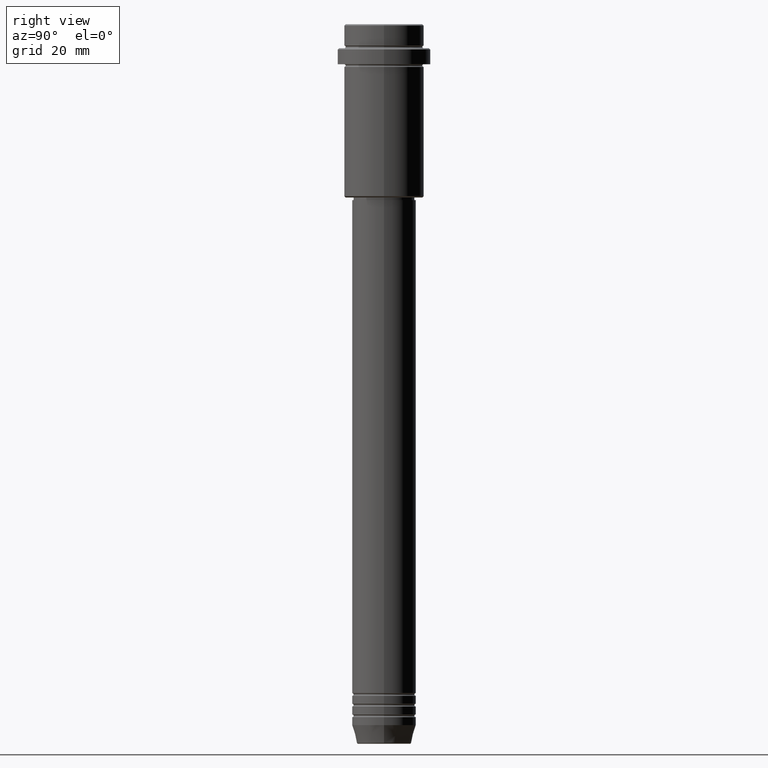
[diagram: clean part render]
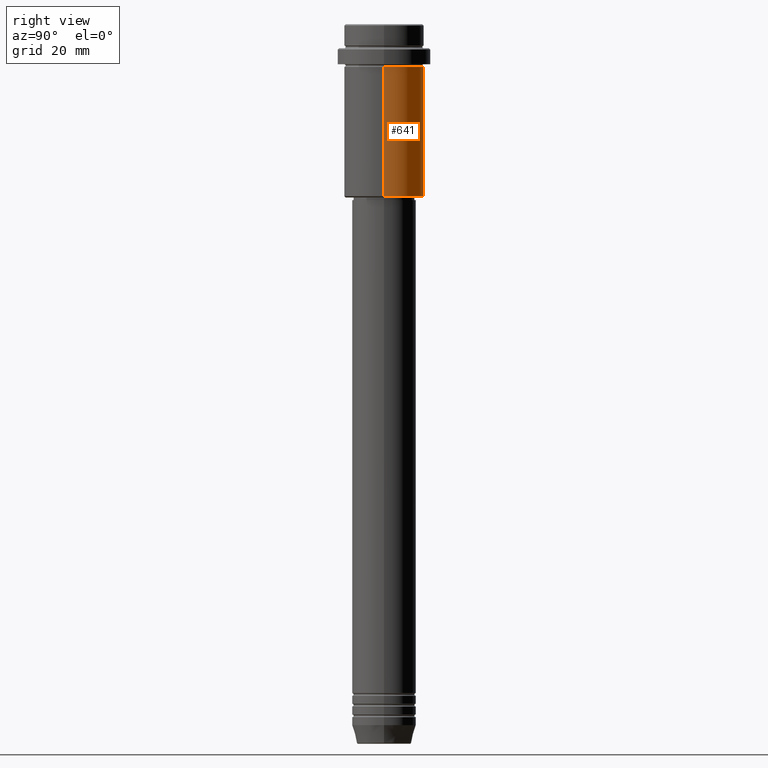
[diagram: same view with one face highlighted and labeled with its STEP entity id]
A machine part, right view. The second image highlights one B-rep face of the part: STEP entity #641.
In plain terms, the highlighted cylindrical surface (partial cylindrical patch) has radius 15 mm, axis along (-0, -0, 1).
Its self-contained STEP definition (entity closure, byte-faithful):
#46 = AXIS2_PLACEMENT_3D ( 'NONE', #520, #1402, #429 ) ;
#92 = EDGE_CURVE ( 'NONE', #262, #382, #1300, .T. ) ;
#118 = DIRECTION ( 'NONE',  ( 1.000000000000000000, 0.000000000000000000, 0.000000000000000000 ) ) ;
#164 = VECTOR ( 'NONE', #179, 1000.000000000000000 ) ;
#179 = DIRECTION ( 'NONE',  ( -0.000000000000000000, -0.000000000000000000, 1.000000000000000000 ) ) ;
#262 = VERTEX_POINT ( 'NONE', #590 ) ;
#264 = ORIENTED_EDGE ( 'NONE', *, *, #92, .F. ) ;
#283 = ORIENTED_EDGE ( 'NONE', *, *, #1070, .T. ) ;
#286 = DIRECTION ( 'NONE',  ( -0.000000000000000000, -0.000000000000000000, 1.000000000000000000 ) ) ;
#299 = LINE ( 'NONE', #731, #164 ) ;
#313 = CYLINDRICAL_SURFACE ( 'NONE', #1262, 15.00000000000000000 ) ;
#382 = VERTEX_POINT ( 'NONE', #602 ) ;
#417 = CARTESIAN_POINT ( 'NONE',  ( -15.00000000000000000, 1.836970198721029589E-15, -64.49999999999998579 ) ) ;
#428 = EDGE_CURVE ( 'NONE', #1211, #262, #299, .T. ) ;
#429 = DIRECTION ( 'NONE',  ( -1.000000000000000000, 0.000000000000000000, 0.000000000000000000 ) ) ;
#430 = DIRECTION ( 'NONE',  ( 1.000000000000000000, 0.000000000000000000, 0.000000000000000000 ) ) ;
#433 = CARTESIAN_POINT ( 'NONE',  ( 0.000000000000000000, 0.000000000000000000, 0.000000000000000000 ) ) ;
#474 = ORIENTED_EDGE ( 'NONE', *, *, #546, .T. ) ;
#519 = VERTEX_POINT ( 'NONE', #417 ) ;
#520 = CARTESIAN_POINT ( 'NONE',  ( 0.000000000000000000, 0.000000000000000000, -64.49999999999998579 ) ) ;
#546 = EDGE_CURVE ( 'NONE', #1211, #519, #1063, .T. ) ;
#550 = AXIS2_PLACEMENT_3D ( 'NONE', #791, #1095, #118 ) ;
#585 = EDGE_LOOP ( 'NONE', ( #474, #283, #264, #1352 ) ) ;
#590 = CARTESIAN_POINT ( 'NONE',  ( 15.00000000000000178, 0.000000000000000000, -16.00000000000000000 ) ) ;
#602 = CARTESIAN_POINT ( 'NONE',  ( -15.00000000000000355, 1.836970198721029983E-15, -16.00000000000000000 ) ) ;
#641 = ADVANCED_FACE ( 'NONE', ( #1288 ), #313, .T. ) ;
#651 = VECTOR ( 'NONE', #286, 1000.000000000000000 ) ;
#720 = CARTESIAN_POINT ( 'NONE',  ( -15.00000000000000000, 1.836970198721029589E-15, 0.000000000000000000 ) ) ;
#731 = CARTESIAN_POINT ( 'NONE',  ( 15.00000000000000000, 0.000000000000000000, 0.000000000000000000 ) ) ;
#791 = CARTESIAN_POINT ( 'NONE',  ( 0.000000000000000000, 0.000000000000000000, -16.00000000000000000 ) ) ;
#829 = LINE ( 'NONE', #720, #651 ) ;
#842 = CARTESIAN_POINT ( 'NONE',  ( 15.00000000000000000, 0.000000000000000000, -64.49999999999998579 ) ) ;
#1063 = CIRCLE ( 'NONE', #46, 15.00000000000000000 ) ;
#1070 = EDGE_CURVE ( 'NONE', #519, #382, #829, .T. ) ;
#1095 = DIRECTION ( 'NONE',  ( -0.000000000000000000, -0.000000000000000000, 1.000000000000000000 ) ) ;
#1189 = DIRECTION ( 'NONE',  ( -0.000000000000000000, -0.000000000000000000, 1.000000000000000000 ) ) ;
#1211 = VERTEX_POINT ( 'NONE', #842 ) ;
#1262 = AXIS2_PLACEMENT_3D ( 'NONE', #433, #1189, #430 ) ;
#1288 = FACE_OUTER_BOUND ( 'NONE', #585, .T. ) ;
#1300 = CIRCLE ( 'NONE', #550, 15.00000000000000178 ) ;
#1352 = ORIENTED_EDGE ( 'NONE', *, *, #428, .F. ) ;
#1402 = DIRECTION ( 'NONE',  ( -0.000000000000000000, -0.000000000000000000, 1.000000000000000000 ) ) ;